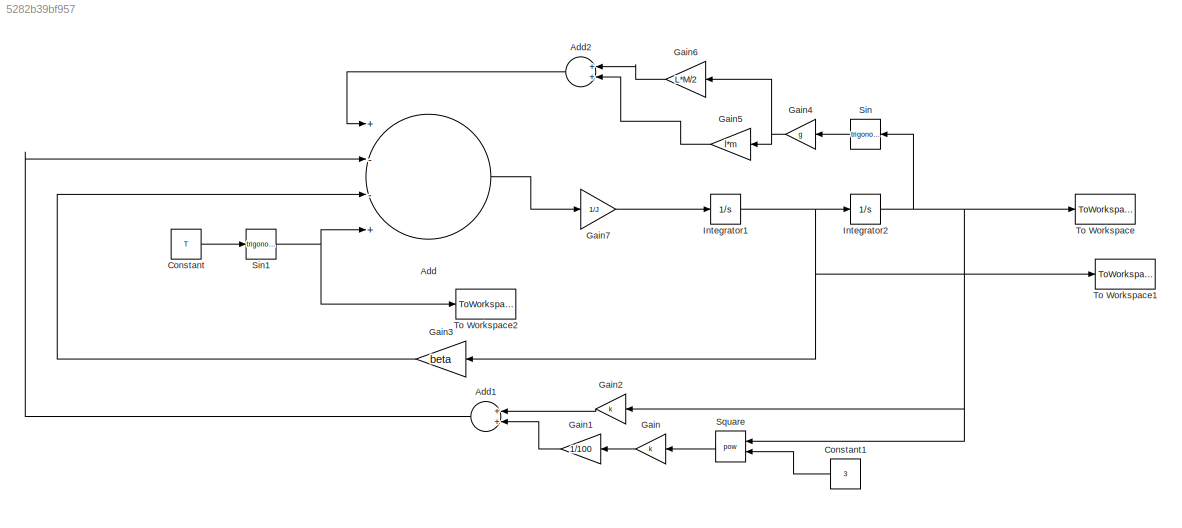
MODEL slx_5282b39bf957
KIND model
CONFIG AbsTol = auto
CONFIG EnableMultiTasking = off
CONFIG FixedStep = auto
CONFIG MaxStep = auto
CONFIG MinStep = auto
CONFIG RelTol = 1e-9
CONFIG SampleTimeConstraint = Unconstrained
CONFIG Solver = ode45
CONFIG SolverName = ode45
CONFIG StartTime = 0.0
CONFIG StopTime = 10.0
BLOCK [Sum] Add
  InputSameDT = off
  Inputs = +--+
  OutDataTypeStr = Inherit: Inherit via internal rule
  Ports = [4, 1]
  SaturateOnIntegerOverflow = off
BLOCK [Sum] Add1
  InputSameDT = off
  OutDataTypeStr = Inherit: Inherit via internal rule
  Ports = [2, 1]
  SaturateOnIntegerOverflow = off
BLOCK [Sum] Add2
  InputSameDT = off
  OutDataTypeStr = Inherit: Inherit via internal rule
  Ports = [2, 1]
  SaturateOnIntegerOverflow = off
BLOCK [Constant] Constant
  Value = T
BLOCK [Constant] Constant1
  Value = 3
BLOCK [Gain] Gain
  Gain = k
  OutDataTypeStr = Inherit: Inherit via internal rule
  ParamDataTypeStr = Inherit: Inherit via internal rule
  SaturateOnIntegerOverflow = off
BLOCK [Gain] Gain1
  Gain = 1/100
  OutDataTypeStr = Inherit: Inherit via internal rule
  ParamDataTypeStr = Inherit: Inherit via internal rule
  SaturateOnIntegerOverflow = off
BLOCK [Gain] Gain2
  Gain = k
  OutDataTypeStr = Inherit: Inherit via internal rule
  ParamDataTypeStr = Inherit: Inherit via internal rule
  SaturateOnIntegerOverflow = off
BLOCK [Gain] Gain3
  Gain = beta
  OutDataTypeStr = Inherit: Inherit via internal rule
  ParamDataTypeStr = Inherit: Inherit via internal rule
  SaturateOnIntegerOverflow = off
BLOCK [Gain] Gain4
  Gain = g
  OutDataTypeStr = Inherit: Inherit via internal rule
  ParamDataTypeStr = Inherit: Inherit via internal rule
  SaturateOnIntegerOverflow = off
BLOCK [Gain] Gain5
  Gain = l*m
  OutDataTypeStr = Inherit: Inherit via internal rule
  ParamDataTypeStr = Inherit: Inherit via internal rule
  SaturateOnIntegerOverflow = off
BLOCK [Gain] Gain6
  Gain = L*M/2
  OutDataTypeStr = Inherit: Inherit via internal rule
  ParamDataTypeStr = Inherit: Inherit via internal rule
  SaturateOnIntegerOverflow = off
BLOCK [Gain] Gain7
  Gain = 1/J
  OutDataTypeStr = Inherit: Inherit via internal rule
  ParamDataTypeStr = Inherit: Inherit via internal rule
  SaturateOnIntegerOverflow = off
BLOCK [Integrator] Integrator1
  InitialCondition = d_teta0
  Ports = [1, 1]
BLOCK [Integrator] Integrator2
  InitialCondition = teta0
  Ports = [1, 1]
BLOCK [Trigonometry] Sin
  Ports = [1, 1]
BLOCK [Trigonometry] Sin1
  Ports = [1, 1]
BLOCK [Math] Square
  Operator = pow
  Ports = [2, 1]
BLOCK [ToWorkspace] To Workspace
  FixptAsFi = on
  MaxDataPoints = inf
  Ports = [1]
  SampleTime = -1
  Save2DSignal = 2-D array (concatenate along first dimension)
  VariableName = teta
BLOCK [ToWorkspace] To Workspace1
  FixptAsFi = on
  MaxDataPoints = inf
  Ports = [1]
  SampleTime = -1
  Save2DSignal = 2-D array (concatenate along first dimension)
  VariableName = d_teta
BLOCK [ToWorkspace] To Workspace2
  FixptAsFi = on
  MaxDataPoints = inf
  Ports = [1]
  SampleTime = -1
  Save2DSignal = 2-D array (concatenate along first dimension)
  VariableName = binario
LINE Add1:1 -> Add:2
LINE Add2:1 -> Add:1
LINE Add:1 -> Gain7:1
LINE Constant1:1 -> Square:2
LINE Constant:1 -> Sin1:1
LINE Gain1:1 -> Add1:2
LINE Gain2:1 -> Add1:1
LINE Gain3:1 -> Add:3
NET Gain4:1 -> Gain5:1, Gain6:1
LINE Gain5:1 -> Add2:2
LINE Gain6:1 -> Add2:1
LINE Gain7:1 -> Integrator1:1
LINE Gain:1 -> Gain1:1
NET Integrator1:1 -> Gain3:1, Integrator2:1, To Workspace1:1
NET Integrator2:1 -> Gain2:1, Sin:1, Square:1, To Workspace:1
NET Sin1:1 -> Add:4, To Workspace2:1
LINE Sin:1 -> Gain4:1
LINE Square:1 -> Gain:1
note: NET lines group one-source signal fan-out (src -> all destinations, sorted); 1:1 wires keep LINE
